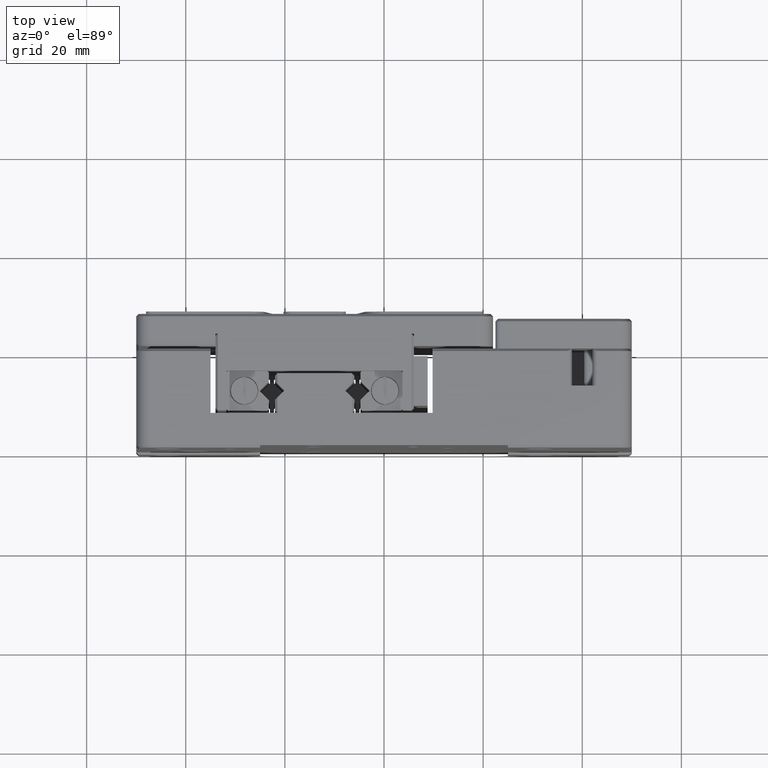
[diagram: clean part render]
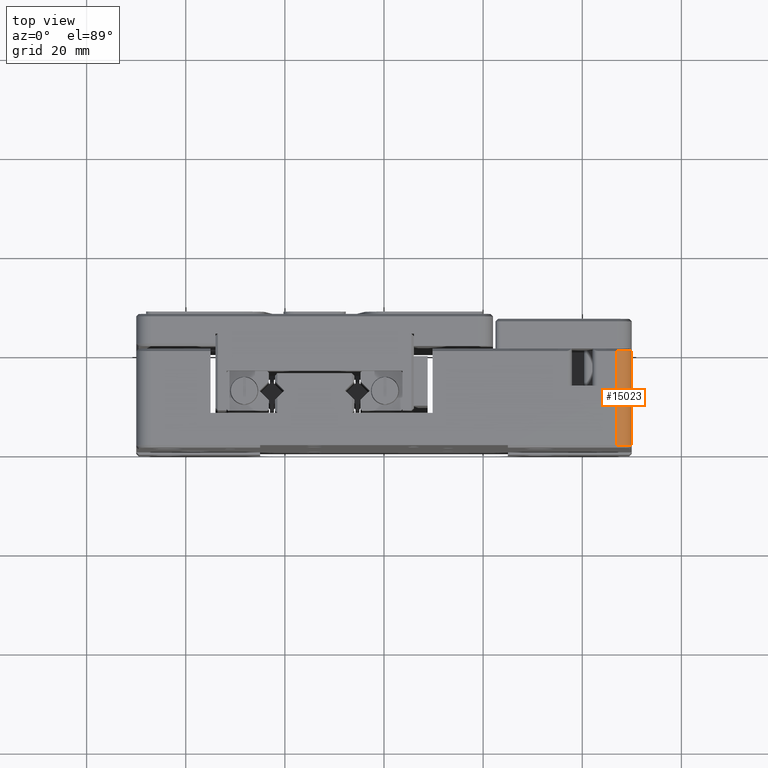
[diagram: same view with one face highlighted and labeled with its STEP entity id]
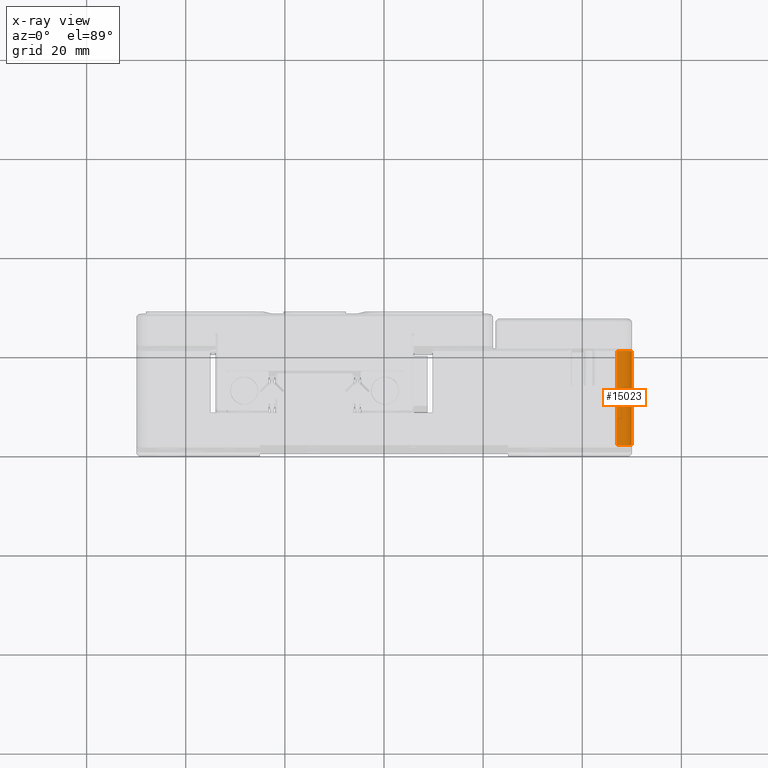
[diagram: x-ray of the same camera — body ghosted, the highlighted face saturated]
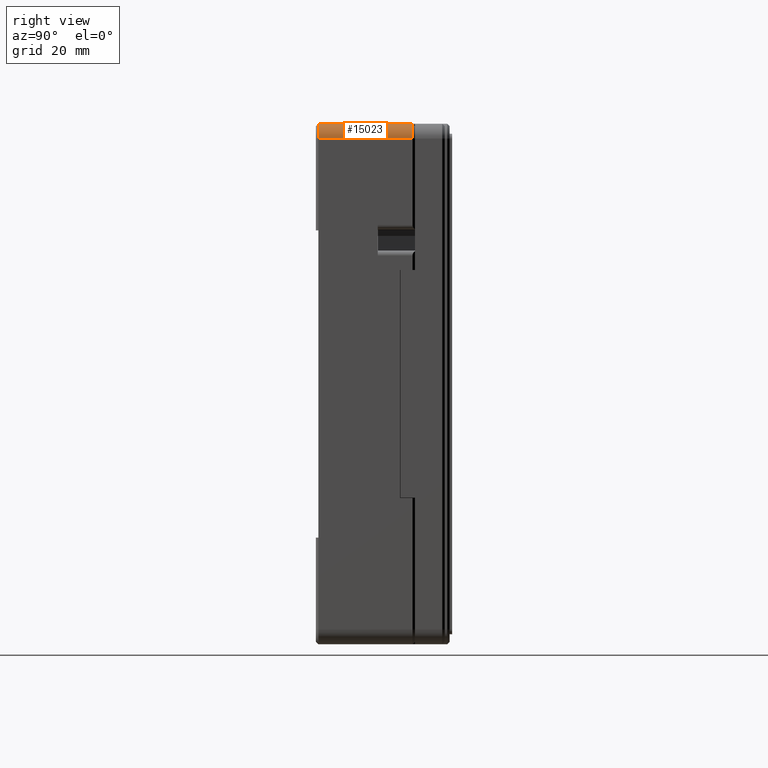
[diagram: same view with one face highlighted and labeled with its STEP entity id]
A machine part, top view. The second image highlights one B-rep face of the part: STEP entity #15023.
The next image is the same camera in x-ray: the body ghosted, the highlighted face saturated — about 0% of this face is hidden behind the body in this view.
A second angle (right view) of the same face is appended — the face is thin or edge-on in the first view.
In plain terms, the highlighted cylindrical surface (edge-blend (fillet) strip) has radius 3 mm, axis along (0, -1, 0).
Its self-contained STEP definition (entity closure, byte-faithful):
#489 = CARTESIAN_POINT ( 'NONE',  ( 50.00000332416289700, -0.5000224487815979600, 49.49999999371960500 ) ) ;
#1051 = VERTEX_POINT ( 'NONE', #489 ) ;
#2100 = CARTESIAN_POINT ( 'NONE',  ( 47.00000002194470000, -19.49997746711610000, 52.50000343355839800 ) ) ;
#3016 = CARTESIAN_POINT ( 'NONE',  ( 49.39901554002827300, -19.49996993934985700, 51.34365169733911900 ) ) ;
#4360 = FACE_OUTER_BOUND ( 'NONE', #46816, .T. ) ;
#4366 = ORIENTED_EDGE ( 'NONE', *, *, #8156, .T. ) ;
#4794 = ORIENTED_EDGE ( 'NONE', *, *, #39587, .F. ) ;
#5476 = LINE ( 'NONE', #35549, #44441 ) ;
#5579 = AXIS2_PLACEMENT_3D ( 'NONE', #46300, #16106, #23690 ) ;
#6817 = CARTESIAN_POINT ( 'NONE',  ( 48.51086639598516800, -19.49996993934985700, 52.12137556940651700 ) ) ;
#7574 = DIRECTION ( 'NONE',  ( -0.0000000000000000000, -1.000000000000000000, -0.0000000000000000000 ) ) ;
#8156 = EDGE_CURVE ( 'NONE', #18259, #46994, #5476, .T. ) ;
#8841 = CARTESIAN_POINT ( 'NONE',  ( 48.51086639598408800, -0.5000300606507943600, 52.12137556940464100 ) ) ;
#8949 = ORIENTED_EDGE ( 'NONE', *, *, #19878, .F. ) ;
#10618 = CARTESIAN_POINT ( 'NONE',  ( 47.39270153919132200, -19.49996993934985700, 52.50001877386046800 ) ) ;
#10889 = CARTESIAN_POINT ( 'NONE',  ( 49.62137556940465500, -0.5000300606507945800, 51.01086639598409500 ) ) ;
#12650 = ORIENTED_EDGE ( 'NONE', *, *, #43616, .T. ) ;
#14672 = CARTESIAN_POINT ( 'NONE',  ( 50.00001877385834300, -0.5000300606507945800, 49.89270153919102300 ) ) ;
#15023 = ADVANCED_FACE ( 'NONE', ( #4360 ), #23249, .T. ) ;
#16106 = DIRECTION ( 'NONE',  ( 0.0000000000000000000, -1.000000000000000000, 0.0000000000000000000 ) ) ;
#17994 = CARTESIAN_POINT ( 'NONE',  ( 50.00001877386046800, -19.49996993934986000, 49.89270153919131400 ) ) ;
#18259 = VERTEX_POINT ( 'NONE', #28869 ) ;
#19878 = EDGE_CURVE ( 'NONE', #18259, #1051, #32280, .T. ) ;
#21061 = LINE ( 'NONE', #22889, #31111 ) ;
#22889 = CARTESIAN_POINT ( 'NONE',  ( 50.00000000000000000, -10.00000000000000000, 49.49999998791000200 ) ) ;
#23249 = CYLINDRICAL_SURFACE ( 'NONE', #5579, 3.000000000000002700 ) ;
#23690 = DIRECTION ( 'NONE',  ( 0.0000000000000000000, 0.0000000000000000000, -1.000000000000000000 ) ) ;
#23835 = CARTESIAN_POINT ( 'NONE',  ( 47.00000002563840000, -0.5000219126603729900, 52.50000327426970200 ) ) ;
#25621 = CARTESIAN_POINT ( 'NONE',  ( 49.62137556940651000, -19.49996993934985700, 51.01086639598515400 ) ) ;
#27607 = CARTESIAN_POINT ( 'NONE',  ( 47.39270153919100900, -0.5000300606507943600, 52.50001877385833600 ) ) ;
#28869 = CARTESIAN_POINT ( 'NONE',  ( 47.00000002563840000, -0.5000219126603729900, 52.50000327426970200 ) ) ;
#29375 = CARTESIAN_POINT ( 'NONE',  ( 48.84365169733911900, -19.49996993934986000, 51.89901554002827300 ) ) ;
#31111 = VECTOR ( 'NONE', #34301, 1000.000000000000000 ) ;
#31381 = CARTESIAN_POINT ( 'NONE',  ( 47.78524856709555000, -0.5000300606507944700, 52.42193631523002000 ) ) ;
#32280 = B_SPLINE_CURVE_WITH_KNOTS ( 'NONE', 3,
 ( #23835, #27607, #31381, #8841, #40876, #33474, #10889, #37232, #14672, #41087 ),
 .UNSPECIFIED., .F., .F.,
 ( 4, 2, 2, 2, 4 ),
 ( 0.0000000000000000000, 0.2500000000000000000, 0.5000000000000000000, 0.7500000000000000000, 1.000000000000000000 ),
 .UNSPECIFIED. ) ;
#33199 = CARTESIAN_POINT ( 'NONE',  ( 47.78524856709610400, -19.49996993934986400, 52.42193631523208800 ) ) ;
#33474 = CARTESIAN_POINT ( 'NONE',  ( 49.39901554002656100, -0.5000300606507945800, 51.34365169733781900 ) ) ;
#34301 = DIRECTION ( 'NONE',  ( -0.0000000000000000000, 1.000000000000000000, -0.0000000000000000000 ) ) ;
#35549 = CARTESIAN_POINT ( 'NONE',  ( 47.00000003169999700, -10.00000000000000000, 52.50000000000000000 ) ) ;
#36962 = CARTESIAN_POINT ( 'NONE',  ( 47.00000002194470000, -19.49997746711610000, 52.50000343355839800 ) ) ;
#37232 = CARTESIAN_POINT ( 'NONE',  ( 49.92193631522999900, -0.5000300606507944700, 50.28524856709554300 ) ) ;
#38393 = VERTEX_POINT ( 'NONE', #42971 ) ;
#38858 = B_SPLINE_CURVE_WITH_KNOTS ( 'NONE', 3,
 ( #44408, #17994, #48208, #25621, #3016, #29375, #6817, #33199, #10618, #36962 ),
 .UNSPECIFIED., .F., .F.,
 ( 4, 2, 2, 2, 4 ),
 ( 0.0000000000000000000, 0.2500000000000000000, 0.5000000000000000000, 0.7500000000000000000, 1.000000000000000000 ),
 .UNSPECIFIED. ) ;
#39587 = EDGE_CURVE ( 'NONE', #38393, #46994, #38858, .T. ) ;
#40876 = CARTESIAN_POINT ( 'NONE',  ( 48.84365169733779800, -0.5000300606507945800, 51.89901554002656800 ) ) ;
#41087 = CARTESIAN_POINT ( 'NONE',  ( 50.00000332416289700, -0.5000224487815979600, 49.49999999371960500 ) ) ;
#42971 = CARTESIAN_POINT ( 'NONE',  ( 50.00000327416420000, -19.49997808744734900, 49.49999999209890000 ) ) ;
#43616 = EDGE_CURVE ( 'NONE', #38393, #1051, #21061, .T. ) ;
#44408 = CARTESIAN_POINT ( 'NONE',  ( 50.00000327416420000, -19.49997808744734900, 49.49999999209890000 ) ) ;
#44441 = VECTOR ( 'NONE', #7574, 1000.000000000000000 ) ;
#46300 = CARTESIAN_POINT ( 'NONE',  ( 47.00000000000000000, -0.5000488344385001200, 49.50000000000000000 ) ) ;
#46816 = EDGE_LOOP ( 'NONE', ( #4794, #12650, #8949, #4366 ) ) ;
#46994 = VERTEX_POINT ( 'NONE', #2100 ) ;
#48208 = CARTESIAN_POINT ( 'NONE',  ( 49.92193631523208800, -19.49996993934986000, 50.28524856709611200 ) ) ;